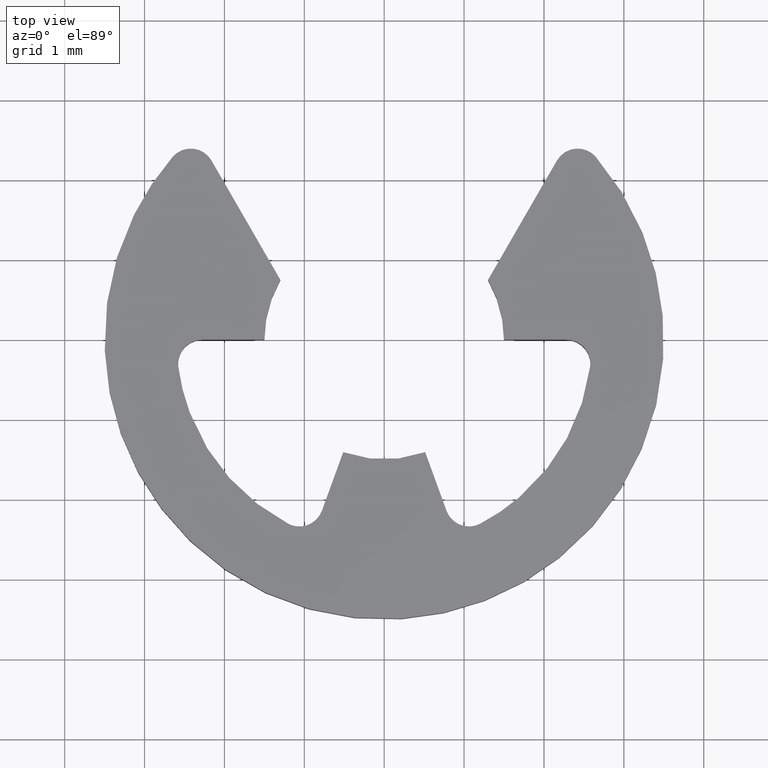
[diagram: clean part render]
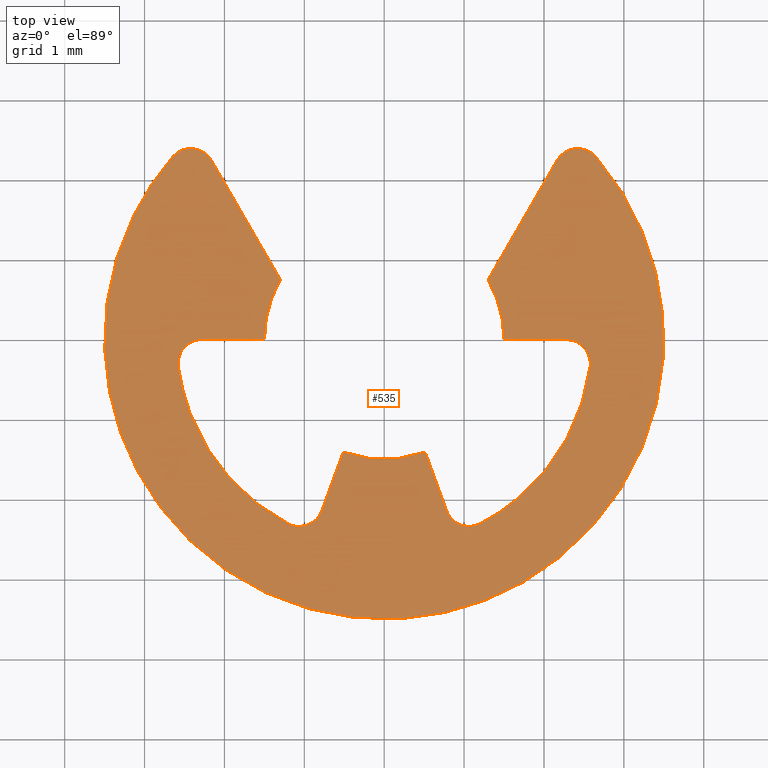
[diagram: same view with one face highlighted and labeled with its STEP entity id]
A machine part, top view. The second image highlights one B-rep face of the part: STEP entity #535.
In plain terms, the highlighted face is a freeform B-spline surface patch.
Its self-contained STEP definition (entity closure, byte-faithful):
#290=CARTESIAN_POINT('',(-3.845083127346428,-3.794273715898620,0.599990999999903));
#291=CARTESIAN_POINT('',(3.845083202592860,-3.794273715898620,0.599990999999903));
#292=CARTESIAN_POINT('',(-3.845083127346428,2.685639786198697,0.599990999999903));
#293=CARTESIAN_POINT('',(3.845083202592860,2.685639786198697,0.599990999999903));
#294=B_SPLINE_SURFACE_WITH_KNOTS('',1,1,((#290,#292),(#291,#293)),.UNSPECIFIED.,.F.,.F.,.U.,(2,2),(2,2),(0.0,7.690166329939289),(0.0,6.479913502097317),.UNSPECIFIED.);
#295=CARTESIAN_POINT('',(-1.500000000000000,0.0,0.599990999999855));
#296=VERTEX_POINT('',#295);
#297=CARTESIAN_POINT('',(-1.300001000000000,0.748328999999899,0.599990999999855));
#298=VERTEX_POINT('',#297);
#299=CARTESIAN_POINT('',(-1.500000000000000,0.0,0.599990999999855));
#300=CARTESIAN_POINT('',(-1.500000000000000,0.400890445406895,0.599990999999855));
#301=CARTESIAN_POINT('',(-1.300001000000000,0.748328999999899,0.599990999999855));
#309=(BOUNDED_CURVE()B_SPLINE_CURVE(2,(#299,#300,#301),.UNSPECIFIED.,.F.,.U.)CURVE()GEOMETRIC_REPRESENTATION_ITEM()QUASI_UNIFORM_CURVE()RATIONAL_B_SPLINE_CURVE((1.0,0.966092010804248,1.0))REPRESENTATION_ITEM(''));
#310=EDGE_CURVE('',#296,#298,#309,.T.);
#311=ORIENTED_EDGE('',*,*,#310,.T.);
#312=CARTESIAN_POINT('',(-2.162090000000000,2.241507999999895,0.599990999999855));
#313=VERTEX_POINT('',#312);
#314=CARTESIAN_POINT('',(-1.300001000000000,0.748328999999899,0.599990999999855));
#315=CARTESIAN_POINT('',(-2.162090000000000,2.241507999999895,0.599990999999855));
#316=QUASI_UNIFORM_CURVE('',1,(#314,#315),.UNSPECIFIED.,.F.,.U.);
#317=EDGE_CURVE('',#298,#313,#316,.T.);
#318=ORIENTED_EDGE('',*,*,#317,.T.);
#319=CARTESIAN_POINT('',(-2.648951083941810,2.287587846375195,0.599990999999855));
#320=VERTEX_POINT('',#319);
#321=CARTESIAN_POINT('',(-2.648951083941811,2.287587846375196,0.599990999999855));
#322=CARTESIAN_POINT('',(-2.547761402684595,2.404762151298508,0.599990999999855));
#323=CARTESIAN_POINT('',(-2.393630421255934,2.390174146258859,0.599990999999855));
#324=CARTESIAN_POINT('',(-2.239499439827274,2.375586141219209,0.599990999999855));
#325=CARTESIAN_POINT('',(-2.162090000000000,2.241507999999895,0.599990999999855));
#333=(BOUNDED_CURVE()B_SPLINE_CURVE(2,(#321,#322,#323,#324,#325),.UNSPECIFIED.,.F.,.U.)B_SPLINE_CURVE_WITH_KNOTS((3,2,3),(0.0,0.500000000000000,1.0),.UNSPECIFIED.)CURVE()GEOMETRIC_REPRESENTATION_ITEM()RATIONAL_B_SPLINE_CURVE((1.0,0.888643489135460,1.0,0.888643489135460,1.0))REPRESENTATION_ITEM(''));
#334=EDGE_CURVE('',#320,#313,#333,.T.);
#335=ORIENTED_EDGE('',*,*,#334,.F.);
#336=CARTESIAN_POINT('',(2.648947918440440,2.287591511915985,0.599990999999855));
#337=VERTEX_POINT('',#336);
#338=CARTESIAN_POINT('',(2.648947918440440,2.287591511915984,0.599990999999855));
#339=CARTESIAN_POINT('',(4.827730852482507,-0.235360023706016,0.599990999999855));
#340=CARTESIAN_POINT('',(2.413867098343857,-2.534412285231629,0.599990999999855));
#341=CARTESIAN_POINT('',(0.000003344205210,-4.833464546757240,0.599990999999855));
#342=CARTESIAN_POINT('',(-2.413863591294092,-2.534415625469665,0.599990999999855));
#343=CARTESIAN_POINT('',(-4.827730526793396,-0.235366704182089,0.599990999999855));
#344=CARTESIAN_POINT('',(-2.648951083941811,2.287587846375196,0.599990999999855));
#352=(BOUNDED_CURVE()B_SPLINE_CURVE(2,(#338,#339,#340,#341,#342,#343,#344),.UNSPECIFIED.,.F.,.U.)B_SPLINE_CURVE_WITH_KNOTS((3,2,2,3),(0.0,0.333333333333333,0.666666666666667,1.0),.UNSPECIFIED.)CURVE()GEOMETRIC_REPRESENTATION_ITEM()RATIONAL_B_SPLINE_CURVE((1.0,0.724118272957500,1.0,0.724118272957500,1.0,0.724118272957500,1.0))REPRESENTATION_ITEM(''));
#353=EDGE_CURVE('',#337,#320,#352,.T.);
#354=ORIENTED_EDGE('',*,*,#353,.F.);
#355=CARTESIAN_POINT('',(2.162086172043400,2.241506641774375,0.599990999999855));
#356=VERTEX_POINT('',#355);
#357=CARTESIAN_POINT('',(2.162086172043400,2.241506641774375,0.599990999999855));
#358=CARTESIAN_POINT('',(2.239495828976419,2.375584001545189,0.599990999999855));
#359=CARTESIAN_POINT('',(2.393626465706862,2.390173544533791,0.599990999999855));
#360=CARTESIAN_POINT('',(2.547757102437305,2.404763087522395,0.599990999999855));
#361=CARTESIAN_POINT('',(2.648947918440440,2.287591511915985,0.599990999999855));
#369=(BOUNDED_CURVE()B_SPLINE_CURVE(2,(#357,#358,#359,#360,#361),.UNSPECIFIED.,.F.,.U.)B_SPLINE_CURVE_WITH_KNOTS((3,2,3),(0.0,0.500000000000000,1.0),.UNSPECIFIED.)CURVE()GEOMETRIC_REPRESENTATION_ITEM()RATIONAL_B_SPLINE_CURVE((1.0,0.888645087393422,1.0,0.888645087393422,1.0))REPRESENTATION_ITEM(''));
#370=EDGE_CURVE('',#356,#337,#369,.T.);
#371=ORIENTED_EDGE('',*,*,#370,.F.);
#372=CARTESIAN_POINT('',(1.299999000000000,0.748328999999899,0.599990999999855));
#373=VERTEX_POINT('',#372);
#374=CARTESIAN_POINT('',(2.162086172043400,2.241506641774375,0.599990999999855));
#375=CARTESIAN_POINT('',(1.299999000000000,0.748328999999899,0.599990999999855));
#376=QUASI_UNIFORM_CURVE('',1,(#374,#375),.UNSPECIFIED.,.F.,.U.);
#377=EDGE_CURVE('',#356,#373,#376,.T.);
#378=ORIENTED_EDGE('',*,*,#377,.T.);
#379=CARTESIAN_POINT('',(1.500000000000000,3.673819E-016,0.599990999999855));
#380=VERTEX_POINT('',#379);
#381=CARTESIAN_POINT('',(1.299999000000000,0.748328999999899,0.599990999999855));
#382=CARTESIAN_POINT('',(1.499999088878164,0.400890455451811,0.599990999999855));
#383=CARTESIAN_POINT('',(1.500000000000000,3.673819E-016,0.599990999999855));
#391=(BOUNDED_CURVE()B_SPLINE_CURVE(2,(#381,#382,#383),.UNSPECIFIED.,.F.,.U.)CURVE()GEOMETRIC_REPRESENTATION_ITEM()QUASI_UNIFORM_CURVE()RATIONAL_B_SPLINE_CURVE((1.0,0.966091924929796,1.0))REPRESENTATION_ITEM(''));
#392=EDGE_CURVE('',#373,#380,#391,.T.);
#393=ORIENTED_EDGE('',*,*,#392,.T.);
#394=CARTESIAN_POINT('',(2.280350000000000,0.0,0.599990999999855));
#395=VERTEX_POINT('',#394);
#396=CARTESIAN_POINT('',(1.500000000000000,3.673819E-016,0.599990999999855));
#397=CARTESIAN_POINT('',(2.280350000000000,0.0,0.599990999999855));
#398=QUASI_UNIFORM_CURVE('',1,(#396,#397),.UNSPECIFIED.,.F.,.U.);
#399=EDGE_CURVE('',#380,#395,#398,.T.);
#400=ORIENTED_EDGE('',*,*,#399,.T.);
#401=CARTESIAN_POINT('',(2.577787015822346,-0.339133826961695,0.599990999999855));
#402=VERTEX_POINT('',#401);
#403=CARTESIAN_POINT('',(2.280350000000000,0.0,0.599990999999855));
#404=CARTESIAN_POINT('',(2.416270016453168,-0.000000596047930,0.599990999999855));
#405=CARTESIAN_POINT('',(2.505892953878499,-0.102187506673590,0.599990999999855));
#406=CARTESIAN_POINT('',(2.595515891303831,-0.204374417299251,0.599990999999855));
#407=CARTESIAN_POINT('',(2.577787015822346,-0.339133826961695,0.599990999999855));
#415=(BOUNDED_CURVE()B_SPLINE_CURVE(2,(#403,#404,#405,#406,#407),.UNSPECIFIED.,.F.,.U.)B_SPLINE_CURVE_WITH_KNOTS((3,2,3),(0.0,0.500000000000000,1.0),.UNSPECIFIED.)CURVE()GEOMETRIC_REPRESENTATION_ITEM()RATIONAL_B_SPLINE_CURVE((1.0,0.910873201316976,1.0,0.910873201316976,1.0))REPRESENTATION_ITEM(''));
#416=EDGE_CURVE('',#395,#402,#415,.T.);
#417=ORIENTED_EDGE('',*,*,#416,.T.);
#418=CARTESIAN_POINT('',(1.200331538917840,-2.306340000233950,0.599990999999855));
#419=VERTEX_POINT('',#418);
#420=CARTESIAN_POINT('',(2.577787015822346,-0.339133826961695,0.599990999999855));
#421=CARTESIAN_POINT('',(2.401205875392415,-1.681346573331909,0.599990999999855));
#422=CARTESIAN_POINT('',(1.200331538917840,-2.306340000233948,0.599990999999855));
#430=(BOUNDED_CURVE()B_SPLINE_CURVE(2,(#420,#421,#422),.UNSPECIFIED.,.F.,.U.)CURVE()GEOMETRIC_REPRESENTATION_ITEM()QUASI_UNIFORM_CURVE()RATIONAL_B_SPLINE_CURVE((1.0,0.886968343947677,1.0))REPRESENTATION_ITEM(''));
#431=EDGE_CURVE('',#402,#419,#430,.T.);
#432=ORIENTED_EDGE('',*,*,#431,.T.);
#433=CARTESIAN_POINT('',(0.779924138981017,-2.142830381845260,0.599990999999855));
#434=VERTEX_POINT('',#433);
#435=CARTESIAN_POINT('',(1.200331538917839,-2.306340000233949,0.599990999999855));
#436=CARTESIAN_POINT('',(1.079763488574856,-2.369089479234371,0.599990999999855));
#437=CARTESIAN_POINT('',(0.953087554820629,-2.319821237071419,0.599990999999855));
#438=CARTESIAN_POINT('',(0.826411621066402,-2.270552994908467,0.599990999999855));
#439=CARTESIAN_POINT('',(0.779924138981018,-2.142830381845259,0.599990999999855));
#447=(BOUNDED_CURVE()B_SPLINE_CURVE(2,(#435,#436,#437,#438,#439),.UNSPECIFIED.,.F.,.U.)B_SPLINE_CURVE_WITH_KNOTS((3,2,3),(0.0,0.500000000000000,1.0),.UNSPECIFIED.)CURVE()GEOMETRIC_REPRESENTATION_ITEM()RATIONAL_B_SPLINE_CURVE((1.0,0.910873616951622,1.0,0.910873616951622,1.0))REPRESENTATION_ITEM(''));
#448=EDGE_CURVE('',#419,#434,#447,.T.);
#449=ORIENTED_EDGE('',*,*,#448,.T.);
#450=CARTESIAN_POINT('',(0.513029000000000,-1.409546000000000,0.599990999999855));
#451=VERTEX_POINT('',#450);
#452=CARTESIAN_POINT('',(0.779924138981017,-2.142830381845260,0.599990999999855));
#453=CARTESIAN_POINT('',(0.513029000000000,-1.409546000000000,0.599990999999855));
#454=QUASI_UNIFORM_CURVE('',1,(#452,#453),.UNSPECIFIED.,.F.,.U.);
#455=EDGE_CURVE('',#434,#451,#454,.T.);
#456=ORIENTED_EDGE('',*,*,#455,.T.);
#457=CARTESIAN_POINT('',(-0.513031518846331,-1.409538456612740,0.599990999999855));
#458=VERTEX_POINT('',#457);
#459=CARTESIAN_POINT('',(0.513029000000000,-1.409546000000000,0.599990999999855));
#460=CARTESIAN_POINT('',(-0.000001567330711,-1.596269163825916,0.599990999999855));
#461=CARTESIAN_POINT('',(-0.513031518846331,-1.409538456612740,0.599990999999855));
#469=(BOUNDED_CURVE()B_SPLINE_CURVE(2,(#459,#460,#461),.UNSPECIFIED.,.F.,.U.)CURVE()GEOMETRIC_REPRESENTATION_ITEM()QUASI_UNIFORM_CURVE()RATIONAL_B_SPLINE_CURVE((1.0,0.939692868390395,1.0))REPRESENTATION_ITEM(''));
#470=EDGE_CURVE('',#451,#458,#469,.T.);
#471=ORIENTED_EDGE('',*,*,#470,.T.);
#472=CARTESIAN_POINT('',(-0.779926000000000,-2.142830000000105,0.599990999999855));
#473=VERTEX_POINT('',#472);
#474=CARTESIAN_POINT('',(-0.513031518846331,-1.409538456612740,0.599990999999855));
#475=CARTESIAN_POINT('',(-0.779926000000000,-2.142830000000105,0.599990999999855));
#476=QUASI_UNIFORM_CURVE('',1,(#474,#475),.UNSPECIFIED.,.F.,.U.);
#477=EDGE_CURVE('',#458,#473,#476,.T.);
#478=ORIENTED_EDGE('',*,*,#477,.T.);
#479=CARTESIAN_POINT('',(-1.200332558039268,-2.306345755683250,0.599990999999855));
#480=VERTEX_POINT('',#479);
#481=CARTESIAN_POINT('',(-0.779926000000000,-2.142830000000105,0.599990999999855));
#482=CARTESIAN_POINT('',(-0.826411067296202,-2.270555561546921,0.599990999999855));
#483=CARTESIAN_POINT('',(-0.953087364756969,-2.319825893111315,0.599990999999855));
#484=CARTESIAN_POINT('',(-1.079763662217735,-2.369096224675708,0.599990999999855));
#485=CARTESIAN_POINT('',(-1.200332558039268,-2.306345755683250,0.599990999999855));
#493=(BOUNDED_CURVE()B_SPLINE_CURVE(2,(#481,#482,#483,#484,#485),.UNSPECIFIED.,.F.,.U.)B_SPLINE_CURVE_WITH_KNOTS((3,2,3),(0.0,0.500000000000000,1.0),.UNSPECIFIED.)CURVE()GEOMETRIC_REPRESENTATION_ITEM()RATIONAL_B_SPLINE_CURVE((1.0,0.910871397277956,1.0,0.910871397277956,1.0))REPRESENTATION_ITEM(''));
#494=EDGE_CURVE('',#473,#480,#493,.T.);
#495=ORIENTED_EDGE('',*,*,#494,.T.);
#496=CARTESIAN_POINT('',(-2.577788062356600,-0.339129334578741,0.599990999999855));
#497=VERTEX_POINT('',#496);
#498=CARTESIAN_POINT('',(-1.200332558039268,-2.306345755683250,0.599990999999855));
#499=CARTESIAN_POINT('',(-2.401209605165513,-1.681348804126765,0.599990999999855));
#500=CARTESIAN_POINT('',(-2.577788062356600,-0.339129334578741,0.599990999999855));
#508=(BOUNDED_CURVE()B_SPLINE_CURVE(2,(#498,#499,#500),.UNSPECIFIED.,.F.,.U.)CURVE()GEOMETRIC_REPRESENTATION_ITEM()QUASI_UNIFORM_CURVE()RATIONAL_B_SPLINE_CURVE((1.0,0.886967780551010,1.0))REPRESENTATION_ITEM(''));
#509=EDGE_CURVE('',#480,#497,#508,.T.);
#510=ORIENTED_EDGE('',*,*,#509,.T.);
#511=CARTESIAN_POINT('',(-2.280351994764015,-0.000003000000103,0.599990999999855));
#512=VERTEX_POINT('',#511);
#513=CARTESIAN_POINT('',(-2.577788062356600,-0.339129334578741,0.599990999999855));
#514=CARTESIAN_POINT('',(-2.595515124665340,-0.204371596682613,0.599990999999855));
#515=CARTESIAN_POINT('',(-2.505892765611844,-0.102187277315756,0.599990999999855));
#516=CARTESIAN_POINT('',(-2.416270406558349,-0.000002957948899,0.599990999999855));
#517=CARTESIAN_POINT('',(-2.280351994764015,-0.000003000000103,0.599990999999855));
#525=(BOUNDED_CURVE()B_SPLINE_CURVE(2,(#513,#514,#515,#516,#517),.UNSPECIFIED.,.F.,.U.)B_SPLINE_CURVE_WITH_KNOTS((3,2,3),(0.0,0.500000000000000,1.0),.UNSPECIFIED.)CURVE()GEOMETRIC_REPRESENTATION_ITEM()RATIONAL_B_SPLINE_CURVE((1.0,0.910874688502973,1.0,0.910874688502973,1.0))REPRESENTATION_ITEM(''));
#526=EDGE_CURVE('',#497,#512,#525,.T.);
#527=ORIENTED_EDGE('',*,*,#526,.T.);
#528=CARTESIAN_POINT('',(-2.280351994764015,-0.000003000000103,0.599990999999855));
#529=CARTESIAN_POINT('',(-1.500000000000000,0.0,0.599990999999855));
#530=QUASI_UNIFORM_CURVE('',1,(#528,#529),.UNSPECIFIED.,.F.,.U.);
#531=EDGE_CURVE('',#512,#296,#530,.T.);
#532=ORIENTED_EDGE('',*,*,#531,.T.);
#533=EDGE_LOOP('',(#311,#318,#335,#354,#371,#378,#393,#400,#417,#432,#449,#456,#471,#478,#495,#510,#527,#532));
#534=FACE_OUTER_BOUND('',#533,.T.);
#535=ADVANCED_FACE('',(#534),#294,.T.);